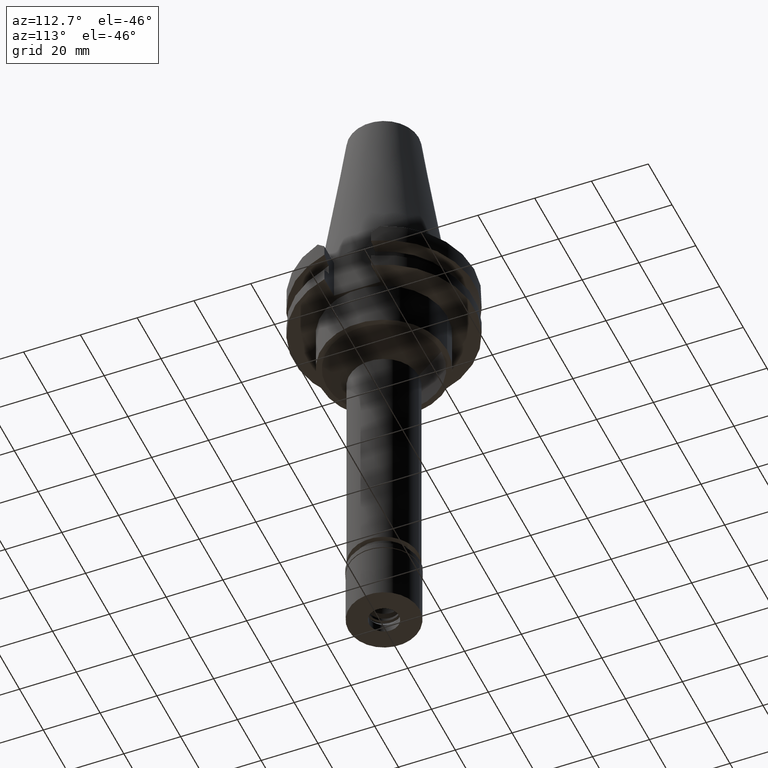
[diagram: clean part render]
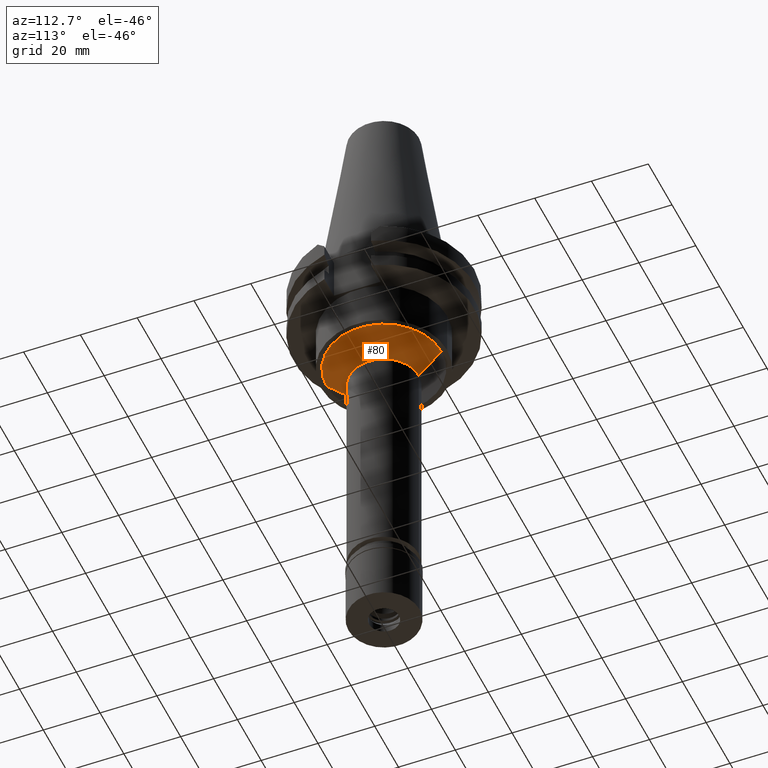
[diagram: same view with one face highlighted and labeled with its STEP entity id]
A machine part, auxiliary view. The second image highlights one B-rep face of the part: STEP entity #80.
In plain terms, the highlighted conical surface has half-angle 45 deg.
Its self-contained STEP definition (entity closure, byte-faithful):
#51 = VERTEX_POINT ( 'NONE', #396 ) ;
#80 = ADVANCED_FACE ( 'NONE', ( #1705 ), #3114, .T. ) ;
#267 = DIRECTION ( 'NONE',  ( 0.0000000000000000000, -0.7071067811865474617, -0.7071067811865474617 ) ) ;
#285 = AXIS2_PLACEMENT_3D ( 'NONE', #1805, #2837, #2787 ) ;
#383 = VERTEX_POINT ( 'NONE', #3153 ) ;
#396 = CARTESIAN_POINT ( 'NONE',  ( 0.0000000000000000000, 12.25000000000000000, -43.00000000000000000 ) ) ;
#954 = ORIENTED_EDGE ( 'NONE', *, *, #2249, .T. ) ;
#1162 = EDGE_CURVE ( 'NONE', #383, #51, #2862, .T. ) ;
#1233 = ORIENTED_EDGE ( 'NONE', *, *, #2869, .F. ) ;
#1241 = CARTESIAN_POINT ( 'NONE',  ( 0.0000000000000000000, 0.0000000000000000000, -39.00000000000000000 ) ) ;
#1362 = DIRECTION ( 'NONE',  ( 0.0000000000000000000, 0.7071067811865474617, -0.7071067811865474617 ) ) ;
#1400 = VECTOR ( 'NONE', #267, 1000.000000000000114 ) ;
#1460 = CIRCLE ( 'NONE', #285, 20.25000000000000000 ) ;
#1541 = CARTESIAN_POINT ( 'NONE',  ( 0.0000000000000000000, 20.25000000000000000, -35.00000000000000000 ) ) ;
#1656 = ORIENTED_EDGE ( 'NONE', *, *, #1162, .F. ) ;
#1661 = VERTEX_POINT ( 'NONE', #3045 ) ;
#1681 = VECTOR ( 'NONE', #1362, 1000.000000000000114 ) ;
#1688 = AXIS2_PLACEMENT_3D ( 'NONE', #1865, #2905, #2091 ) ;
#1705 = FACE_OUTER_BOUND ( 'NONE', #2889, .T. ) ;
#1723 = VERTEX_POINT ( 'NONE', #1741 ) ;
#1741 = CARTESIAN_POINT ( 'NONE',  ( 0.0000000000000000000, -12.25000000000000000, -43.00000000000000000 ) ) ;
#1805 = CARTESIAN_POINT ( 'NONE',  ( 0.0000000000000000000, 0.0000000000000000000, -35.00000000000000000 ) ) ;
#1865 = CARTESIAN_POINT ( 'NONE',  ( 0.0000000000000000000, 0.0000000000000000000, -43.00000000000000000 ) ) ;
#1961 = CIRCLE ( 'NONE', #1688, 12.25000000000000000 ) ;
#2065 = ORIENTED_EDGE ( 'NONE', *, *, #2215, .T. ) ;
#2080 = LINE ( 'NONE', #2325, #1681 ) ;
#2091 = DIRECTION ( 'NONE',  ( 0.0000000000000000000, 1.000000000000000000, 0.0000000000000000000 ) ) ;
#2215 = EDGE_CURVE ( 'NONE', #383, #1661, #1460, .T. ) ;
#2249 = EDGE_CURVE ( 'NONE', #1661, #1723, #2080, .T. ) ;
#2270 = DIRECTION ( 'NONE',  ( 0.0000000000000000000, 1.000000000000000000, 0.0000000000000000000 ) ) ;
#2325 = CARTESIAN_POINT ( 'NONE',  ( 0.0000000000000000000, -20.25000000000000000, -35.00000000000000000 ) ) ;
#2527 = DIRECTION ( 'NONE',  ( 0.0000000000000000000, 0.0000000000000000000, 1.000000000000000000 ) ) ;
#2787 = DIRECTION ( 'NONE',  ( 0.0000000000000000000, 1.000000000000000000, 0.0000000000000000000 ) ) ;
#2793 = AXIS2_PLACEMENT_3D ( 'NONE', #1241, #2527, #2270 ) ;
#2837 = DIRECTION ( 'NONE',  ( 0.0000000000000000000, 0.0000000000000000000, -1.000000000000000000 ) ) ;
#2862 = LINE ( 'NONE', #1541, #1400 ) ;
#2869 = EDGE_CURVE ( 'NONE', #51, #1723, #1961, .T. ) ;
#2889 = EDGE_LOOP ( 'NONE', ( #2065, #954, #1233, #1656 ) ) ;
#2905 = DIRECTION ( 'NONE',  ( 0.0000000000000000000, 0.0000000000000000000, -1.000000000000000000 ) ) ;
#3045 = CARTESIAN_POINT ( 'NONE',  ( 0.0000000000000000000, -20.25000000000000000, -35.00000000000000000 ) ) ;
#3114 = CONICAL_SURFACE ( 'NONE', #2793, 16.25000000000000000, 0.7853981633972997312 ) ;
#3153 = CARTESIAN_POINT ( 'NONE',  ( 0.0000000000000000000, 20.25000000000000000, -35.00000000000000000 ) ) ;